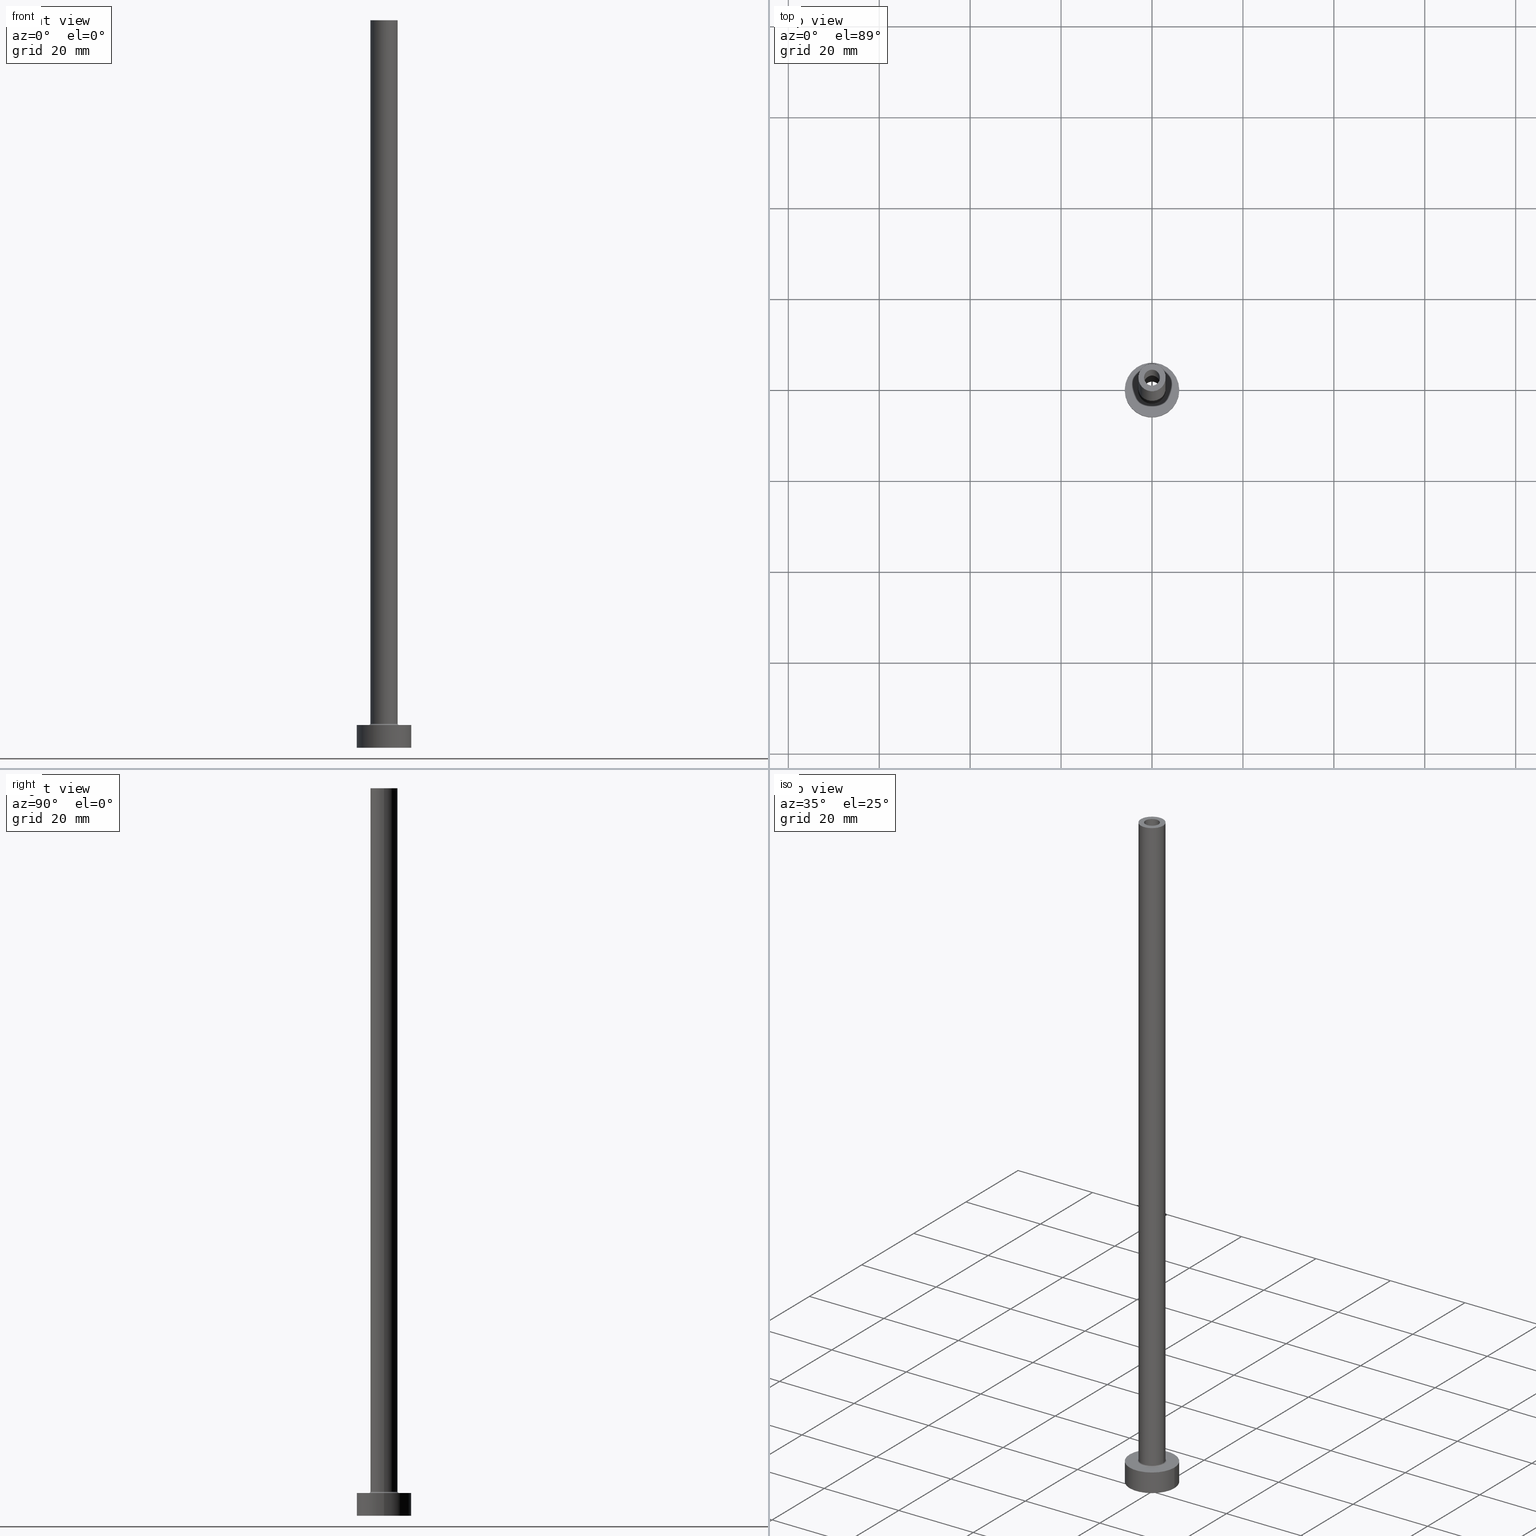
[diagram: canonical four-view strip — front | top / right | iso, engineering-drawing reading convention]
A machine part, canonical four-view strip (front | top / right | iso — engineering-drawing reading convention). The complete STEP part file that produces these views, byte-faithful:
ISO-10303-21;
HEADER;
FILE_DESCRIPTION (( 'STEP AP203' ),
    '1' );
FILE_NAME ('81c4.STEP',
    '2023-02-13T12:00:51',
    ( '' ),
    ( '' ),
    'SwSTEP 2.0',
    'SolidWorks 2019',
    '' );
FILE_SCHEMA (( 'CONFIG_CONTROL_DESIGN' ));
ENDSEC;

DATA;
#1 = DIRECTION ( 'NONE',  ( 0.000000000000000000, 0.000000000000000000, 1.000000000000000000 ) ) ;
#2 = FACE_BOUND ( 'NONE', #270, .T. ) ;
#3 = CARTESIAN_POINT ( 'NONE',  ( 0.000000000000000000, 0.000000000000000000, 120.3740115370177648 ) ) ;
#4 = CARTESIAN_POINT ( 'NONE',  ( 1.899999999999999911, 2.326828918379971365E-16, 115.0000000000000000 ) ) ;
#5 = DIRECTION ( 'NONE',  ( -0.000000000000000000, -0.000000000000000000, -1.000000000000000000 ) ) ;
#6 = CARTESIAN_POINT ( 'NONE',  ( -6.000000000000000888, 0.000000000000000000, 5.000000000000000000 ) ) ;
#7 = AXIS2_PLACEMENT_3D ( 'NONE', #115, #1, #289 ) ;
#8 = CARTESIAN_POINT ( 'NONE',  ( -1.899999999999999911, 0.000000000000000000, 0.000000000000000000 ) ) ;
#9 = CARTESIAN_POINT ( 'NONE',  ( 0.000000000000000000, 0.000000000000000000, 115.0000000000000000 ) ) ;
#10 = ORIENTED_EDGE ( 'NONE', *, *, #313, .F. ) ;
#11 = CIRCLE ( 'NONE', #207, 0.2999999999999999334 ) ;
#12 = ORIENTED_EDGE ( 'NONE', *, *, #373, .F. ) ;
#13 = AXIS2_PLACEMENT_3D ( 'NONE', #180, #320, #215 ) ;
#14 = EDGE_CURVE ( 'NONE', #417, #57, #37, .T. ) ;
#15 = VERTEX_POINT ( 'NONE', #100 ) ;
#16 = ADVANCED_FACE ( 'NONE', ( #67, #63 ), #102, .F. ) ;
#17 = COORDINATED_UNIVERSAL_TIME_OFFSET ( 1, 0, .AHEAD. ) ;
#18 = LINE ( 'NONE', #168, #73 ) ;
#19 = EDGE_LOOP ( 'NONE', ( #229, #237 ) ) ;
#20 = ORIENTED_EDGE ( 'NONE', *, *, #167, .T. ) ;
#21 = FACE_BOUND ( 'NONE', #261, .T. ) ;
#22 = AXIS2_PLACEMENT_3D ( 'NONE', #353, #5, #357 ) ;
#23 = ORIENTED_EDGE ( 'NONE', *, *, #76, .F. ) ;
#24 = DIRECTION ( 'NONE',  ( 1.000000000000000000, 0.000000000000000000, -0.000000000000000000 ) ) ;
#25 = EDGE_LOOP ( 'NONE', ( #85, #120, #432, #141 ) ) ;
#26 = CYLINDRICAL_SURFACE ( 'NONE', #225, 6.000000000000000888 ) ;
#27 = AXIS2_PLACEMENT_3D ( 'NONE', #97, #339, #304 ) ;
#28 = CC_DESIGN_APPROVAL ( #251, ( #241 ) ) ;
#29 = EDGE_CURVE ( 'NONE', #384, #45, #126, .T. ) ;
#30 = CALENDAR_DATE ( 2023, 13, 2 ) ;
#31 = DIRECTION ( 'NONE',  ( 0.000000000000000000, 0.000000000000000000, -1.000000000000000000 ) ) ;
#32 = DIRECTION ( 'NONE',  ( -1.000000000000000000, 0.000000000000000000, 0.000000000000000000 ) ) ;
#33 = LOCAL_TIME ( 13, 0, 51.00000000000000000, #263 ) ;
#34 = DIRECTION ( 'NONE',  ( 0.000000000000000000, 0.000000000000000000, 1.000000000000000000 ) ) ;
#35 = CARTESIAN_POINT ( 'NONE',  ( 6.000000000000000888, 7.347880794884120722E-16, 5.000000000000000000 ) ) ;
#36 = LINE ( 'NONE', #387, #154 ) ;
#37 = LINE ( 'NONE', #35, #322 ) ;
#38 = DIRECTION ( 'NONE',  ( -0.000000000000000000, -0.000000000000000000, -1.000000000000000000 ) ) ;
#39 = AXIS2_PLACEMENT_3D ( 'NONE', #50, #86, #205 ) ;
#40 = CARTESIAN_POINT ( 'NONE',  ( 0.000000000000000000, 0.000000000000000000, 0.000000000000000000 ) ) ;
#41 = ORIENTED_EDGE ( 'NONE', *, *, #423, .T. ) ;
#42 = DATE_TIME_ROLE ( 'creation_date' ) ;
#43 = DIRECTION ( 'NONE',  ( 0.000000000000000000, 0.000000000000000000, 1.000000000000000000 ) ) ;
#44 = ADVANCED_FACE ( 'NONE', ( #369 ), #198, .T. ) ;
#45 = VERTEX_POINT ( 'NONE', #8 ) ;
#46 = PERSON_AND_ORGANIZATION ( #94, #254 ) ;
#47 = DIRECTION ( 'NONE',  ( -0.000000000000000000, -0.000000000000000000, -1.000000000000000000 ) ) ;
#48 = CIRCLE ( 'NONE', #56, 0.2999999999999999334 ) ;
#49 = EDGE_LOOP ( 'NONE', ( #105, #99 ) ) ;
#50 = CARTESIAN_POINT ( 'NONE',  ( 0.000000000000000000, 0.000000000000000000, 115.0000000000000000 ) ) ;
#51 = APPLICATION_PROTOCOL_DEFINITION ( 'international standard', 'config_control_design', 1994, #172 ) ;
#52 = AXIS2_PLACEMENT_3D ( 'NONE', #295, #43, #361 ) ;
#53 = COORDINATED_UNIVERSAL_TIME_OFFSET ( 1, 0, .AHEAD. ) ;
#54 = ORIENTED_EDGE ( 'NONE', *, *, #174, .F. ) ;
#55 = CARTESIAN_POINT ( 'NONE',  ( -1.750000000000000000, 0.000000000000000000, 160.0000000000000000 ) ) ;
#56 = AXIS2_PLACEMENT_3D ( 'NONE', #190, #110, #430 ) ;
#57 = VERTEX_POINT ( 'NONE', #188 ) ;
#58 = DIRECTION ( 'NONE',  ( 1.000000000000000000, 0.000000000000000000, 0.000000000000000000 ) ) ;
#59 = PERSON_AND_ORGANIZATION ( #94, #254 ) ;
#60 = EDGE_CURVE ( 'NONE', #452, #81, #351, .T. ) ;
#61 = CC_DESIGN_DATE_AND_TIME_ASSIGNMENT ( #259, #42, ( #294 ) ) ;
#62 = APPROVAL_ROLE ( '' ) ;
#63 = FACE_OUTER_BOUND ( 'NONE', #303, .T. ) ;
#64 = LOCAL_TIME ( 13, 0, 51.00000000000000000, #53 ) ;
#65 = CARTESIAN_POINT ( 'NONE',  ( -6.000000000000000888, 0.000000000000000000, 5.000000000000000000 ) ) ;
#66 = DIRECTION ( 'NONE',  ( 0.000000000000000000, 0.000000000000000000, -1.000000000000000000 ) ) ;
#67 = FACE_BOUND ( 'NONE', #19, .T. ) ;
#68 = CARTESIAN_POINT ( 'NONE',  ( 0.000000000000000000, 0.000000000000000000, 0.000000000000000000 ) ) ;
#69 = DATE_TIME_ROLE ( 'classification_date' ) ;
#70 = PLANE ( 'NONE',  #177 ) ;
#71 = CARTESIAN_POINT ( 'NONE',  ( 0.000000000000000000, 0.000000000000000000, 5.000000000000000000 ) ) ;
#72 = CARTESIAN_POINT ( 'NONE',  ( 1.899999999999999911, 2.326828918379971365E-16, 0.000000000000000000 ) ) ;
#73 = VECTOR ( 'NONE', #164, 1000.000000000000000 ) ;
#74 = DIRECTION ( 'NONE',  ( 0.000000000000000000, 0.000000000000000000, 1.000000000000000000 ) ) ;
#75 = EDGE_CURVE ( 'NONE', #272, #406, #309, .T. ) ;
#76 = EDGE_CURVE ( 'NONE', #406, #272, #281, .T. ) ;
#77 = DIRECTION ( 'NONE',  ( -0.000000000000000000, -0.000000000000000000, -1.000000000000000000 ) ) ;
#78 = ORIENTED_EDGE ( 'NONE', *, *, #116, .T. ) ;
#79 = AXIS2_PLACEMENT_3D ( 'NONE', #173, #77, #355 ) ;
#80 = CALENDAR_DATE ( 2023, 13, 2 ) ;
#81 = VERTEX_POINT ( 'NONE', #195 ) ;
#82 = ADVANCED_FACE ( 'NONE', ( #379 ), #414, .F. ) ;
#83 = EDGE_LOOP ( 'NONE', ( #266, #363, #316, #279 ) ) ;
#84 = PERSON_AND_ORGANIZATION ( #94, #254 ) ;
#85 = ORIENTED_EDGE ( 'NONE', *, *, #374, .F. ) ;
#86 = DIRECTION ( 'NONE',  ( 0.000000000000000000, 0.000000000000000000, 1.000000000000000000 ) ) ;
#87 = ORIENTED_EDGE ( 'NONE', *, *, #29, .T. ) ;
#88 = DIRECTION ( 'NONE',  ( -0.000000000000000000, -0.000000000000000000, -1.000000000000000000 ) ) ;
#89 = APPROVAL_STATUS ( 'not_yet_approved' ) ;
#90 = CARTESIAN_POINT ( 'NONE',  ( 0.000000000000000000, 0.000000000000000000, 160.0000000000000000 ) ) ;
#91 = PERSON_AND_ORGANIZATION ( #94, #254 ) ;
#92 = ORIENTED_EDGE ( 'NONE', *, *, #14, .T. ) ;
#93 = CARTESIAN_POINT ( 'NONE',  ( 3.300000000000000266, 0.000000000000000000, 4.999999999999999112 ) ) ;
#94 = PERSON ( 'NEUR�EN�', 'NEUR�EN�', 'NEUR�EN�', ('NEUR�EN�'), ('NEUR�EN�'), ('NEUR�EN�') ) ;
#95 = AXIS2_PLACEMENT_3D ( 'NONE', #142, #74, #249 ) ;
#96 = EDGE_CURVE ( 'NONE', #297, #243, #211, .T. ) ;
#97 = CARTESIAN_POINT ( 'NONE',  ( 0.000000000000000000, 0.000000000000000000, 5.299999999999998934 ) ) ;
#98 = EDGE_CURVE ( 'NONE', #272, #297, #138, .T. ) ;
#99 = ORIENTED_EDGE ( 'NONE', *, *, #346, .T. ) ;
#100 = CARTESIAN_POINT ( 'NONE',  ( 3.000000000000000444, 3.673940397442060361E-16, 160.0000000000000000 ) ) ;
#101 = CARTESIAN_POINT ( 'NONE',  ( -3.000000000000000444, 0.000000000000000000, 160.0000000000000000 ) ) ;
#102 = PLANE ( 'NONE',  #109 ) ;
#103 = CIRCLE ( 'NONE', #95, 3.000000000000000444 ) ;
#104 = LINE ( 'NONE', #419, #161 ) ;
#105 = ORIENTED_EDGE ( 'NONE', *, *, #358, .T. ) ;
#106 = DIRECTION ( 'NONE',  ( 1.000000000000000000, 0.000000000000000000, 0.000000000000000000 ) ) ;
#107 = CARTESIAN_POINT ( 'NONE',  ( 0.000000000000000000, 0.000000000000000000, 115.0000000000000000 ) ) ;
#108 = EDGE_LOOP ( 'NONE', ( #458, #92, #227, #199 ) ) ;
#109 = AXIS2_PLACEMENT_3D ( 'NONE', #40, #119, #428 ) ;
#110 = DIRECTION ( 'NONE',  ( 1.224646799147353207E-16, 1.000000000000000000, -0.000000000000000000 ) ) ;
#111 = DIRECTION ( 'NONE',  ( 0.000000000000000000, 0.000000000000000000, 1.000000000000000000 ) ) ;
#112 = AXIS2_PLACEMENT_3D ( 'NONE', #411, #446, #58 ) ;
#113 = CARTESIAN_POINT ( 'NONE',  ( 1.750000000000000000, 2.143131898507867804E-16, 115.0000000000000000 ) ) ;
#114 = CC_DESIGN_APPROVAL ( #214, ( #294 ) ) ;
#115 = CARTESIAN_POINT ( 'NONE',  ( 0.000000000000000000, 0.000000000000000000, 5.000000000000000000 ) ) ;
#116 = EDGE_CURVE ( 'NONE', #452, #208, #11, .T. ) ;
#117 = DIRECTION ( 'NONE',  ( 0.000000000000000000, 0.000000000000000000, 1.000000000000000000 ) ) ;
#118 = PERSON_AND_ORGANIZATION ( #94, #254 ) ;
#119 = DIRECTION ( 'NONE',  ( 0.000000000000000000, 0.000000000000000000, 1.000000000000000000 ) ) ;
#120 = ORIENTED_EDGE ( 'NONE', *, *, #324, .T. ) ;
#121 =( GEOMETRIC_REPRESENTATION_CONTEXT ( 3 ) GLOBAL_UNCERTAINTY_ASSIGNED_CONTEXT ( ( #396 ) ) GLOBAL_UNIT_ASSIGNED_CONTEXT ( ( #150, #181, #250 ) ) REPRESENTATION_CONTEXT ( 'NONE', 'WORKASPACE' ) );
#122 = CIRCLE ( 'NONE', #377, 3.000000000000000444 ) ;
#123 = APPROVAL_DATE_TIME ( #296, #214 ) ;
#124 = ORIENTED_EDGE ( 'NONE', *, *, #166, .T. ) ;
#125 = EDGE_LOOP ( 'NONE', ( #159, #163, #78, #429 ) ) ;
#126 = CIRCLE ( 'NONE', #366, 1.899999999999999911 ) ;
#127 = FACE_BOUND ( 'NONE', #147, .T. ) ;
#128 = ORIENTED_EDGE ( 'NONE', *, *, #409, .T. ) ;
#129 = CIRCLE ( 'NONE', #362, 3.300000000000000266 ) ;
#130 = EDGE_CURVE ( 'NONE', #208, #434, #129, .T. ) ;
#131 = DIRECTION ( 'NONE',  ( 1.000000000000000000, 0.000000000000000000, 0.000000000000000000 ) ) ;
#132 = LOCAL_TIME ( 13, 0, 51.00000000000000000, #311 ) ;
#133 = PERSON_AND_ORGANIZATION_ROLE ( 'design_owner' ) ;
#134 = ORIENTED_EDGE ( 'NONE', *, *, #185, .T. ) ;
#135 = DIRECTION ( 'NONE',  ( 1.000000000000000000, 0.000000000000000000, 0.000000000000000000 ) ) ;
#136 = DIRECTION ( 'NONE',  ( 0.000000000000000000, 0.000000000000000000, 1.000000000000000000 ) ) ;
#137 = ORIENTED_EDGE ( 'NONE', *, *, #313, .T. ) ;
#138 = LINE ( 'NONE', #55, #400 ) ;
#139 = CLOSED_SHELL ( 'NONE', ( #325, #359, #82, #140, #44, #204, #151, #16, #231, #213, #345, #454, #424, #453 ) ) ;
#140 = ADVANCED_FACE ( 'NONE', ( #277 ), #247, .T. ) ;
#141 = ORIENTED_EDGE ( 'NONE', *, *, #116, .F. ) ;
#142 = CARTESIAN_POINT ( 'NONE',  ( 0.000000000000000000, 0.000000000000000000, 5.299999999999998934 ) ) ;
#143 = ORIENTED_EDGE ( 'NONE', *, *, #75, .F. ) ;
#144 = LINE ( 'NONE', #460, #318 ) ;
#145 = CIRCLE ( 'NONE', #403, 1.899999999999999911 ) ;
#146 = DIRECTION ( 'NONE',  ( 1.000000000000000000, 0.000000000000000000, -0.000000000000000000 ) ) ;
#147 = EDGE_LOOP ( 'NONE', ( #371, #258 ) ) ;
#148 = DIRECTION ( 'NONE',  ( -0.000000000000000000, -0.000000000000000000, -1.000000000000000000 ) ) ;
#149 = EDGE_LOOP ( 'NONE', ( #336, #439, #380, #301 ) ) ;
#150 =( LENGTH_UNIT ( ) NAMED_UNIT ( * ) SI_UNIT ( .MILLI., .METRE. ) );
#151 = ADVANCED_FACE ( 'NONE', ( #127, #265 ), #412, .T. ) ;
#152 = DIRECTION ( 'NONE',  ( 1.000000000000000000, 0.000000000000000000, 0.000000000000000000 ) ) ;
#153 = DIRECTION ( 'NONE',  ( -0.000000000000000000, -0.000000000000000000, -1.000000000000000000 ) ) ;
#154 = VECTOR ( 'NONE', #317, 1000.000000000000000 ) ;
#155 = CARTESIAN_POINT ( 'NONE',  ( 0.000000000000000000, 0.000000000000000000, 5.000000000000000000 ) ) ;
#156 = DIRECTION ( 'NONE',  ( -1.000000000000000000, 0.000000000000000000, 0.000000000000000000 ) ) ;
#157 = ORIENTED_EDGE ( 'NONE', *, *, #395, .T. ) ;
#158 = DIRECTION ( 'NONE',  ( 0.000000000000000000, 0.000000000000000000, 1.000000000000000000 ) ) ;
#159 = ORIENTED_EDGE ( 'NONE', *, *, #324, .F. ) ;
#160 = CYLINDRICAL_SURFACE ( 'NONE', #13, 1.750000000000000000 ) ;
#161 = VECTOR ( 'NONE', #66, 1000.000000000000000 ) ;
#162 = PERSON_AND_ORGANIZATION_ROLE ( 'creator' ) ;
#163 = ORIENTED_EDGE ( 'NONE', *, *, #60, .F. ) ;
#164 = DIRECTION ( 'NONE',  ( 0.000000000000000000, 0.000000000000000000, -1.000000000000000000 ) ) ;
#165 = EDGE_LOOP ( 'NONE', ( #210, #233, #87, #389 ) ) ;
#166 = EDGE_CURVE ( 'NONE', #299, #222, #441, .T. ) ;
#167 = EDGE_CURVE ( 'NONE', #222, #45, #18, .T. ) ;
#168 = CARTESIAN_POINT ( 'NONE',  ( -1.899999999999999911, 0.000000000000000000, 120.3740115370177648 ) ) ;
#169 = ORIENTED_EDGE ( 'NONE', *, *, #14, .F. ) ;
#170 = AXIS2_PLACEMENT_3D ( 'NONE', #440, #372, #131 ) ;
#171 = CARTESIAN_POINT ( 'NONE',  ( 0.000000000000000000, 0.000000000000000000, 160.0000000000000000 ) ) ;
#172 = APPLICATION_CONTEXT ( 'configuration controlled 3d designs of mechanical parts and assemblies' ) ;
#173 = CARTESIAN_POINT ( 'NONE',  ( 0.000000000000000000, 0.000000000000000000, 160.0000000000000000 ) ) ;
#174 = EDGE_CURVE ( 'NONE', #15, #367, #381, .T. ) ;
#175 = CARTESIAN_POINT ( 'NONE',  ( -1.899999999999999911, 0.000000000000000000, 115.0000000000000000 ) ) ;
#176 = APPROVAL_STATUS ( 'not_yet_approved' ) ;
#177 = AXIS2_PLACEMENT_3D ( 'NONE', #107, #216, #146 ) ;
#178 = CARTESIAN_POINT ( 'NONE',  ( 0.000000000000000000, 0.000000000000000000, 5.299999999999998934 ) ) ;
#179 = ADVANCED_BREP_SHAPE_REPRESENTATION ( '81c4', ( #267, #393 ), #121 ) ;
#180 = CARTESIAN_POINT ( 'NONE',  ( 0.000000000000000000, 0.000000000000000000, 160.0000000000000000 ) ) ;
#181 =( NAMED_UNIT ( * ) PLANE_ANGLE_UNIT ( ) SI_UNIT ( $, .RADIAN. ) );
#182 = LOCAL_TIME ( 13, 0, 51.00000000000000000, #17 ) ;
#183 = DIRECTION ( 'NONE',  ( 1.000000000000000000, 0.000000000000000000, 0.000000000000000000 ) ) ;
#184 = CARTESIAN_POINT ( 'NONE',  ( 6.000000000000000888, 7.347880794884120722E-16, 5.000000000000000000 ) ) ;
#185 = EDGE_CURVE ( 'NONE', #45, #384, #341, .T. ) ;
#186 = CARTESIAN_POINT ( 'NONE',  ( -1.750000000000000000, 0.000000000000000000, 115.0000000000000000 ) ) ;
#187 = CARTESIAN_POINT ( 'NONE',  ( 0.000000000000000000, 0.000000000000000000, 0.000000000000000000 ) ) ;
#188 = CARTESIAN_POINT ( 'NONE',  ( 6.000000000000000888, 7.347880794884120722E-16, 0.000000000000000000 ) ) ;
#189 = ORIENTED_EDGE ( 'NONE', *, *, #262, .T. ) ;
#190 = CARTESIAN_POINT ( 'NONE',  ( -3.300000000000000266, 4.041334437186266003E-16, 5.299999999999998934 ) ) ;
#191 = DIRECTION ( 'NONE',  ( 0.000000000000000000, 0.000000000000000000, 1.000000000000000000 ) ) ;
#192 = ORIENTED_EDGE ( 'NONE', *, *, #174, .T. ) ;
#193 = AXIS2_PLACEMENT_3D ( 'NONE', #3, #390, #354 ) ;
#194 = APPROVAL_ROLE ( '' ) ;
#195 = CARTESIAN_POINT ( 'NONE',  ( -3.000000000000000444, 0.000000000000000000, 5.299999999999998934 ) ) ;
#196 = EDGE_LOOP ( 'NONE', ( #12, #124, #20, #134 ) ) ;
#197 = EDGE_LOOP ( 'NONE', ( #206, #418 ) ) ;
#198 = CYLINDRICAL_SURFACE ( 'NONE', #407, 6.000000000000000888 ) ;
#199 = ORIENTED_EDGE ( 'NONE', *, *, #262, .F. ) ;
#200 = AXIS2_PLACEMENT_3D ( 'NONE', #235, #202, #408 ) ;
#201 = TOROIDAL_SURFACE ( 'NONE', #286, 3.300000000000000266, 0.2999999999999999889 ) ;
#202 = DIRECTION ( 'NONE',  ( 0.000000000000000000, 0.000000000000000000, 1.000000000000000000 ) ) ;
#203 = PRODUCT_DEFINITION_SHAPE ( 'NONE', 'NONE',  #294 ) ;
#204 = ADVANCED_FACE ( 'NONE', ( #344 ), #26, .T. ) ;
#205 = DIRECTION ( 'NONE',  ( 1.000000000000000000, 0.000000000000000000, 0.000000000000000000 ) ) ;
#206 = ORIENTED_EDGE ( 'NONE', *, *, #293, .F. ) ;
#207 = AXIS2_PLACEMENT_3D ( 'NONE', #307, #308, #438 ) ;
#208 = VERTEX_POINT ( 'NONE', #93 ) ;
#209 = CARTESIAN_POINT ( 'NONE',  ( 0.000000000000000000, 0.000000000000000000, 5.000000000000000000 ) ) ;
#210 = ORIENTED_EDGE ( 'NONE', *, *, #293, .T. ) ;
#211 = CIRCLE ( 'NONE', #39, 1.750000000000000000 ) ;
#212 = APPROVAL_PERSON_ORGANIZATION ( #59, #273, #62 ) ;
#213 = ADVANCED_FACE ( 'NONE', ( #21, #242 ), #415, .T. ) ;
#214 = APPROVAL ( #89, 'NEUR�EN�' ) ;
#215 = DIRECTION ( 'NONE',  ( -1.000000000000000000, 0.000000000000000000, 0.000000000000000000 ) ) ;
#216 = DIRECTION ( 'NONE',  ( 0.000000000000000000, 0.000000000000000000, 1.000000000000000000 ) ) ;
#217 = CYLINDRICAL_SURFACE ( 'NONE', #193, 1.899999999999999911 ) ;
#218 = CARTESIAN_POINT ( 'NONE',  ( -3.000000000000000444, 0.000000000000000000, 160.0000000000000000 ) ) ;
#219 = DIRECTION ( 'NONE',  ( 0.000000000000000000, 0.000000000000000000, 1.000000000000000000 ) ) ;
#220 = CIRCLE ( 'NONE', #356, 6.000000000000000888 ) ;
#221 = CARTESIAN_POINT ( 'NONE',  ( 1.750000000000000000, 2.143131898507867804E-16, 160.0000000000000000 ) ) ;
#222 = VERTEX_POINT ( 'NONE', #175 ) ;
#223 = DESIGN_CONTEXT ( 'detailed design', #172, 'design' ) ;
#224 = CARTESIAN_POINT ( 'NONE',  ( -1.750000000000000000, 0.000000000000000000, 160.0000000000000000 ) ) ;
#225 = AXIS2_PLACEMENT_3D ( 'NONE', #209, #88, #375 ) ;
#226 = EDGE_LOOP ( 'NONE', ( #54, #128, #401, #306 ) ) ;
#227 = ORIENTED_EDGE ( 'NONE', *, *, #436, .T. ) ;
#228 = DIRECTION ( 'NONE',  ( 1.000000000000000000, 0.000000000000000000, 0.000000000000000000 ) ) ;
#229 = ORIENTED_EDGE ( 'NONE', *, *, #185, .F. ) ;
#230 = PERSON_AND_ORGANIZATION_ROLE ( 'design_supplier' ) ;
#231 = ADVANCED_FACE ( 'NONE', ( #310 ), #449, .T. ) ;
#232 = CC_DESIGN_PERSON_AND_ORGANIZATION_ASSIGNMENT ( #91, #133, ( #333 ) ) ;
#233 = ORIENTED_EDGE ( 'NONE', *, *, #373, .T. ) ;
#234 = SECURITY_CLASSIFICATION ( '', '', #368 ) ;
#235 = CARTESIAN_POINT ( 'NONE',  ( 0.000000000000000000, 0.000000000000000000, 5.000000000000000000 ) ) ;
#236 = CC_DESIGN_PERSON_AND_ORGANIZATION_ASSIGNMENT ( #46, #334, ( #234 ) ) ;
#237 = ORIENTED_EDGE ( 'NONE', *, *, #29, .F. ) ;
#238 = DIRECTION ( 'NONE',  ( 0.000000000000000000, 0.000000000000000000, 1.000000000000000000 ) ) ;
#239 = APPROVAL_ROLE ( '' ) ;
#240 = DIRECTION ( 'NONE',  ( 0.000000000000000000, 0.000000000000000000, -1.000000000000000000 ) ) ;
#241 = PRODUCT_DEFINITION_FORMATION_WITH_SPECIFIED_SOURCE ( 'LIBOVOLN�', '', #333, .NOT_KNOWN. ) ;
#242 = FACE_OUTER_BOUND ( 'NONE', #410, .T. ) ;
#243 = VERTEX_POINT ( 'NONE', #113 ) ;
#244 = CALENDAR_DATE ( 2023, 13, 2 ) ;
#245 = DIRECTION ( 'NONE',  ( 0.000000000000000000, 0.000000000000000000, -1.000000000000000000 ) ) ;
#246 = CC_DESIGN_APPROVAL ( #273, ( #234 ) ) ;
#247 = CYLINDRICAL_SURFACE ( 'NONE', #391, 3.000000000000000444 ) ;
#248 = DATE_AND_TIME ( #30, #292 ) ;
#249 = DIRECTION ( 'NONE',  ( 1.000000000000000000, 0.000000000000000000, 0.000000000000000000 ) ) ;
#250 =( NAMED_UNIT ( * ) SI_UNIT ( $, .STERADIAN. ) SOLID_ANGLE_UNIT ( ) );
#251 = APPROVAL ( #437, 'NEUR�EN�' ) ;
#252 = DIRECTION ( 'NONE',  ( 1.000000000000000000, 0.000000000000000000, 0.000000000000000000 ) ) ;
#253 = CARTESIAN_POINT ( 'NONE',  ( 3.000000000000000444, 3.673940397442060361E-16, 5.299999999999998934 ) ) ;
#254 = ORGANIZATION ( 'NEUR�EN�', 'NEUR�EN�', '' ) ;
#255 = LINE ( 'NONE', #6, #284 ) ;
#256 = DIRECTION ( 'NONE',  ( -1.000000000000000000, 0.000000000000000000, 0.000000000000000000 ) ) ;
#257 = DIRECTION ( 'NONE',  ( -0.000000000000000000, -0.000000000000000000, -1.000000000000000000 ) ) ;
#258 = ORIENTED_EDGE ( 'NONE', *, *, #392, .T. ) ;
#259 = DATE_AND_TIME ( #80, #182 ) ;
#260 = DIRECTION ( 'NONE',  ( 0.000000000000000000, 0.000000000000000000, 1.000000000000000000 ) ) ;
#261 = EDGE_LOOP ( 'NONE', ( #143, #23 ) ) ;
#262 = EDGE_CURVE ( 'NONE', #328, #312, #255, .T. ) ;
#263 = COORDINATED_UNIVERSAL_TIME_OFFSET ( 1, 0, .AHEAD. ) ;
#264 = APPROVAL_DATE_TIME ( #402, #251 ) ;
#265 = FACE_OUTER_BOUND ( 'NONE', #49, .T. ) ;
#266 = ORIENTED_EDGE ( 'NONE', *, *, #75, .T. ) ;
#267 = MANIFOLD_SOLID_BREP ( 'Odebrat vysunut�m4', #139 ) ;
#268 = CARTESIAN_POINT ( 'NONE',  ( 0.000000000000000000, 0.000000000000000000, 5.000000000000000000 ) ) ;
#269 = PERSON_AND_ORGANIZATION ( #94, #254 ) ;
#270 = EDGE_LOOP ( 'NONE', ( #447, #157 ) ) ;
#271 = DIRECTION ( 'NONE',  ( 1.000000000000000000, 0.000000000000000000, 0.000000000000000000 ) ) ;
#272 = VERTEX_POINT ( 'NONE', #224 ) ;
#273 = APPROVAL ( #176, 'NEUR�EN�' ) ;
#274 = DIRECTION ( 'NONE',  ( -1.000000000000000000, 0.000000000000000000, 0.000000000000000000 ) ) ;
#275 = ORIENTED_EDGE ( 'NONE', *, *, #358, .F. ) ;
#276 = CIRCLE ( 'NONE', #22, 3.300000000000000266 ) ;
#277 = FACE_OUTER_BOUND ( 'NONE', #226, .T. ) ;
#278 = DATE_AND_TIME ( #244, #132 ) ;
#279 = ORIENTED_EDGE ( 'NONE', *, *, #98, .F. ) ;
#280 = ORIENTED_EDGE ( 'NONE', *, *, #436, .F. ) ;
#281 = CIRCLE ( 'NONE', #52, 1.750000000000000000 ) ;
#282 = AXIS2_PLACEMENT_3D ( 'NONE', #435, #260, #323 ) ;
#283 = DIRECTION ( 'NONE',  ( -0.000000000000000000, -0.000000000000000000, -1.000000000000000000 ) ) ;
#284 = VECTOR ( 'NONE', #38, 1000.000000000000000 ) ;
#285 = DIRECTION ( 'NONE',  ( 0.000000000000000000, 0.000000000000000000, -1.000000000000000000 ) ) ;
#286 = AXIS2_PLACEMENT_3D ( 'NONE', #178, #421, #106 ) ;
#287 = FACE_OUTER_BOUND ( 'NONE', #125, .T. ) ;
#288 = CARTESIAN_POINT ( 'NONE',  ( 0.000000000000000000, 0.000000000000000000, 160.0000000000000000 ) ) ;
#289 = DIRECTION ( 'NONE',  ( 1.000000000000000000, 0.000000000000000000, 0.000000000000000000 ) ) ;
#290 = CARTESIAN_POINT ( 'NONE',  ( -6.000000000000000888, 0.000000000000000000, 0.000000000000000000 ) ) ;
#291 = CARTESIAN_POINT ( 'NONE',  ( 0.000000000000000000, 0.000000000000000000, 160.0000000000000000 ) ) ;
#292 = LOCAL_TIME ( 13, 0, 51.00000000000000000, #457 ) ;
#293 = EDGE_CURVE ( 'NONE', #222, #299, #145, .T. ) ;
#294 = PRODUCT_DEFINITION ( 'NEZN�M�', '', #241, #223 ) ;
#295 = CARTESIAN_POINT ( 'NONE',  ( 0.000000000000000000, 0.000000000000000000, 160.0000000000000000 ) ) ;
#296 = DATE_AND_TIME ( #413, #64 ) ;
#297 = VERTEX_POINT ( 'NONE', #186 ) ;
#298 = DIRECTION ( 'NONE',  ( 0.000000000000000000, 0.000000000000000000, 1.000000000000000000 ) ) ;
#299 = VERTEX_POINT ( 'NONE', #4 ) ;
#300 = CIRCLE ( 'NONE', #342, 6.000000000000000888 ) ;
#301 = ORIENTED_EDGE ( 'NONE', *, *, #395, .F. ) ;
#302 = PERSON_AND_ORGANIZATION_ROLE ( 'creator' ) ;
#303 = EDGE_LOOP ( 'NONE', ( #450, #280 ) ) ;
#304 = DIRECTION ( 'NONE',  ( 1.000000000000000000, 0.000000000000000000, 0.000000000000000000 ) ) ;
#305 = APPLICATION_PROTOCOL_DEFINITION ( 'international standard', 'config_control_design', 1994, #385 ) ;
#306 = ORIENTED_EDGE ( 'NONE', *, *, #423, .F. ) ;
#307 = CARTESIAN_POINT ( 'NONE',  ( 3.300000000000000266, 0.000000000000000000, 5.299999999999998934 ) ) ;
#308 = DIRECTION ( 'NONE',  ( 0.000000000000000000, -1.000000000000000000, 0.000000000000000000 ) ) ;
#309 = CIRCLE ( 'NONE', #388, 1.750000000000000000 ) ;
#310 = FACE_OUTER_BOUND ( 'NONE', #376, .T. ) ;
#311 = COORDINATED_UNIVERSAL_TIME_OFFSET ( 1, 0, .AHEAD. ) ;
#312 = VERTEX_POINT ( 'NONE', #290 ) ;
#313 = EDGE_CURVE ( 'NONE', #367, #15, #122, .T. ) ;
#314 = EDGE_CURVE ( 'NONE', #312, #57, #220, .T. ) ;
#315 = APPROVAL_PERSON_ORGANIZATION ( #269, #214, #239 ) ;
#316 = ORIENTED_EDGE ( 'NONE', *, *, #96, .F. ) ;
#317 = DIRECTION ( 'NONE',  ( -0.000000000000000000, -0.000000000000000000, -1.000000000000000000 ) ) ;
#318 = VECTOR ( 'NONE', #285, 1000.000000000000000 ) ;
#319 = FACE_OUTER_BOUND ( 'NONE', #196, .T. ) ;
#320 = DIRECTION ( 'NONE',  ( 0.000000000000000000, 0.000000000000000000, -1.000000000000000000 ) ) ;
#321 = CARTESIAN_POINT ( 'NONE',  ( 0.000000000000000000, 0.000000000000000000, 115.0000000000000000 ) ) ;
#322 = VECTOR ( 'NONE', #283, 1000.000000000000000 ) ;
#323 = DIRECTION ( 'NONE',  ( 1.000000000000000000, 0.000000000000000000, 0.000000000000000000 ) ) ;
#324 = EDGE_CURVE ( 'NONE', #81, #434, #48, .T. ) ;
#325 = ADVANCED_FACE ( 'NONE', ( #386 ), #160, .F. ) ;
#326 = DIRECTION ( 'NONE',  ( 1.000000000000000000, 0.000000000000000000, 0.000000000000000000 ) ) ;
#327 = APPROVAL_PERSON_ORGANIZATION ( #118, #251, #194 ) ;
#328 = VERTEX_POINT ( 'NONE', #65 ) ;
#329 = CC_DESIGN_PERSON_AND_ORGANIZATION_ASSIGNMENT ( #360, #162, ( #294 ) ) ;
#330 = CARTESIAN_POINT ( 'NONE',  ( 0.000000000000000000, 0.000000000000000000, 0.000000000000000000 ) ) ;
#331 = ORIENTED_EDGE ( 'NONE', *, *, #409, .F. ) ;
#332 = CIRCLE ( 'NONE', #7, 6.000000000000000888 ) ;
#333 = PRODUCT ( '81c4', '81c4', '', ( #340 ) ) ;
#334 = PERSON_AND_ORGANIZATION_ROLE ( 'classification_officer' ) ;
#335 = DIRECTION ( 'NONE',  ( 1.000000000000000000, 0.000000000000000000, 0.000000000000000000 ) ) ;
#336 = ORIENTED_EDGE ( 'NONE', *, *, #378, .F. ) ;
#337 = CARTESIAN_POINT ( 'NONE',  ( 0.000000000000000000, 0.000000000000000000, 115.0000000000000000 ) ) ;
#338 = EDGE_LOOP ( 'NONE', ( #169, #275, #189, #365 ) ) ;
#339 = DIRECTION ( 'NONE',  ( 0.000000000000000000, 0.000000000000000000, 1.000000000000000000 ) ) ;
#340 = MECHANICAL_CONTEXT ( 'NONE', #385, 'mechanical' ) ;
#341 = CIRCLE ( 'NONE', #170, 1.899999999999999911 ) ;
#342 = AXIS2_PLACEMENT_3D ( 'NONE', #71, #219, #383 ) ;
#343 = DIRECTION ( 'NONE',  ( 0.000000000000000000, 0.000000000000000000, 1.000000000000000000 ) ) ;
#344 = FACE_OUTER_BOUND ( 'NONE', #338, .T. ) ;
#345 = ADVANCED_FACE ( 'NONE', ( #287 ), #201, .F. ) ;
#346 = EDGE_CURVE ( 'NONE', #417, #328, #300, .T. ) ;
#347 = AXIS2_PLACEMENT_3D ( 'NONE', #171, #343, #24 ) ;
#348 = AXIS2_PLACEMENT_3D ( 'NONE', #455, #31, #156 ) ;
#349 = FACE_OUTER_BOUND ( 'NONE', #165, .T. ) ;
#350 = FACE_OUTER_BOUND ( 'NONE', #149, .T. ) ;
#351 = CIRCLE ( 'NONE', #282, 3.000000000000000444 ) ;
#352 = CC_DESIGN_DATE_AND_TIME_ASSIGNMENT ( #248, #69, ( #234 ) ) ;
#353 = CARTESIAN_POINT ( 'NONE',  ( 0.000000000000000000, 0.000000000000000000, 5.000000000000000000 ) ) ;
#354 = DIRECTION ( 'NONE',  ( -1.000000000000000000, 0.000000000000000000, 0.000000000000000000 ) ) ;
#355 = DIRECTION ( 'NONE',  ( -1.000000000000000000, 0.000000000000000000, 0.000000000000000000 ) ) ;
#356 = AXIS2_PLACEMENT_3D ( 'NONE', #68, #298, #183 ) ;
#357 = DIRECTION ( 'NONE',  ( 1.000000000000000000, 0.000000000000000000, 0.000000000000000000 ) ) ;
#358 = EDGE_CURVE ( 'NONE', #328, #417, #332, .T. ) ;
#359 = ADVANCED_FACE ( 'NONE', ( #349 ), #398, .F. ) ;
#360 = PERSON_AND_ORGANIZATION ( #94, #254 ) ;
#361 = DIRECTION ( 'NONE',  ( 1.000000000000000000, 0.000000000000000000, 0.000000000000000000 ) ) ;
#362 = AXIS2_PLACEMENT_3D ( 'NONE', #268, #443, #135 ) ;
#363 = ORIENTED_EDGE ( 'NONE', *, *, #378, .T. ) ;
#364 = PERSON_AND_ORGANIZATION ( #94, #254 ) ;
#365 = ORIENTED_EDGE ( 'NONE', *, *, #314, .T. ) ;
#366 = AXIS2_PLACEMENT_3D ( 'NONE', #330, #257, #228 ) ;
#367 = VERTEX_POINT ( 'NONE', #218 ) ;
#368 = SECURITY_CLASSIFICATION_LEVEL ( 'unclassified' ) ;
#369 = FACE_OUTER_BOUND ( 'NONE', #108, .T. ) ;
#370 = AXIS2_PLACEMENT_3D ( 'NONE', #321, #34, #252 ) ;
#371 = ORIENTED_EDGE ( 'NONE', *, *, #130, .T. ) ;
#372 = DIRECTION ( 'NONE',  ( -0.000000000000000000, -0.000000000000000000, -1.000000000000000000 ) ) ;
#373 = EDGE_CURVE ( 'NONE', #299, #384, #144, .T. ) ;
#374 = EDGE_CURVE ( 'NONE', #81, #452, #103, .T. ) ;
#375 = DIRECTION ( 'NONE',  ( -1.000000000000000000, 0.000000000000000000, 0.000000000000000000 ) ) ;
#376 = EDGE_LOOP ( 'NONE', ( #331, #10, #41, #445 ) ) ;
#377 = AXIS2_PLACEMENT_3D ( 'NONE', #288, #158, #397 ) ;
#378 = EDGE_CURVE ( 'NONE', #406, #243, #104, .T. ) ;
#379 = FACE_OUTER_BOUND ( 'NONE', #25, .T. ) ;
#380 = ORIENTED_EDGE ( 'NONE', *, *, #98, .T. ) ;
#381 = CIRCLE ( 'NONE', #112, 3.000000000000000444 ) ;
#382 = AXIS2_PLACEMENT_3D ( 'NONE', #187, #111, #152 ) ;
#383 = DIRECTION ( 'NONE',  ( 1.000000000000000000, 0.000000000000000000, 0.000000000000000000 ) ) ;
#384 = VERTEX_POINT ( 'NONE', #72 ) ;
#385 = APPLICATION_CONTEXT ( 'configuration controlled 3d designs of mechanical parts and assemblies' ) ;
#386 = FACE_OUTER_BOUND ( 'NONE', #83, .T. ) ;
#387 = CARTESIAN_POINT ( 'NONE',  ( 3.000000000000000444, 3.673940397442060361E-16, 160.0000000000000000 ) ) ;
#388 = AXIS2_PLACEMENT_3D ( 'NONE', #399, #191, #326 ) ;
#389 = ORIENTED_EDGE ( 'NONE', *, *, #167, .F. ) ;
#390 = DIRECTION ( 'NONE',  ( 0.000000000000000000, 0.000000000000000000, -1.000000000000000000 ) ) ;
#391 = AXIS2_PLACEMENT_3D ( 'NONE', #90, #47, #274 ) ;
#392 = EDGE_CURVE ( 'NONE', #434, #208, #276, .T. ) ;
#393 = AXIS2_PLACEMENT_3D ( 'NONE', #444, #136, #271 ) ;
#394 = CYLINDRICAL_SURFACE ( 'NONE', #404, 1.750000000000000000 ) ;
#395 = EDGE_CURVE ( 'NONE', #243, #297, #433, .T. ) ;
#396 = UNCERTAINTY_MEASURE_WITH_UNIT (LENGTH_MEASURE( 1.000000000000000082E-05 ), #150, 'distance_accuracy_value', 'NONE');
#397 = DIRECTION ( 'NONE',  ( 1.000000000000000000, 0.000000000000000000, 0.000000000000000000 ) ) ;
#398 = CYLINDRICAL_SURFACE ( 'NONE', #348, 1.899999999999999911 ) ;
#399 = CARTESIAN_POINT ( 'NONE',  ( 0.000000000000000000, 0.000000000000000000, 160.0000000000000000 ) ) ;
#400 = VECTOR ( 'NONE', #240, 1000.000000000000000 ) ;
#401 = ORIENTED_EDGE ( 'NONE', *, *, #60, .T. ) ;
#402 = DATE_AND_TIME ( #431, #33 ) ;
#403 = AXIS2_PLACEMENT_3D ( 'NONE', #9, #117, #459 ) ;
#404 = AXIS2_PLACEMENT_3D ( 'NONE', #291, #245, #32 ) ;
#405 = CC_DESIGN_PERSON_AND_ORGANIZATION_ASSIGNMENT ( #84, #230, ( #241 ) ) ;
#406 = VERTEX_POINT ( 'NONE', #221 ) ;
#407 = AXIS2_PLACEMENT_3D ( 'NONE', #155, #153, #256 ) ;
#408 = DIRECTION ( 'NONE',  ( 1.000000000000000000, 0.000000000000000000, -0.000000000000000000 ) ) ;
#409 = EDGE_CURVE ( 'NONE', #15, #452, #36, .T. ) ;
#410 = EDGE_LOOP ( 'NONE', ( #137, #192 ) ) ;
#411 = CARTESIAN_POINT ( 'NONE',  ( 0.000000000000000000, 0.000000000000000000, 160.0000000000000000 ) ) ;
#412 = PLANE ( 'NONE',  #200 ) ;
#413 = CALENDAR_DATE ( 2023, 13, 2 ) ;
#414 = TOROIDAL_SURFACE ( 'NONE', #27, 3.300000000000000266, 0.2999999999999999889 ) ;
#415 = PLANE ( 'NONE',  #347 ) ;
#416 = APPROVAL_DATE_TIME ( #278, #273 ) ;
#417 = VERTEX_POINT ( 'NONE', #184 ) ;
#418 = ORIENTED_EDGE ( 'NONE', *, *, #166, .F. ) ;
#419 = CARTESIAN_POINT ( 'NONE',  ( 1.750000000000000000, 2.143131898507867804E-16, 160.0000000000000000 ) ) ;
#420 = AXIS2_PLACEMENT_3D ( 'NONE', #337, #238, #335 ) ;
#421 = DIRECTION ( 'NONE',  ( 0.000000000000000000, 0.000000000000000000, 1.000000000000000000 ) ) ;
#422 = SHAPE_DEFINITION_REPRESENTATION ( #203, #179 ) ;
#423 = EDGE_CURVE ( 'NONE', #367, #81, #427, .T. ) ;
#424 = ADVANCED_FACE ( 'NONE', ( #2, #425 ), #70, .F. ) ;
#425 = FACE_OUTER_BOUND ( 'NONE', #197, .T. ) ;
#426 = CIRCLE ( 'NONE', #382, 6.000000000000000888 ) ;
#427 = LINE ( 'NONE', #101, #451 ) ;
#428 = DIRECTION ( 'NONE',  ( 1.000000000000000000, 0.000000000000000000, -0.000000000000000000 ) ) ;
#429 = ORIENTED_EDGE ( 'NONE', *, *, #392, .F. ) ;
#430 = DIRECTION ( 'NONE',  ( -1.000000000000000000, 1.224646799147353207E-16, 0.000000000000000000 ) ) ;
#431 = CALENDAR_DATE ( 2023, 13, 2 ) ;
#432 = ORIENTED_EDGE ( 'NONE', *, *, #130, .F. ) ;
#433 = CIRCLE ( 'NONE', #370, 1.750000000000000000 ) ;
#434 = VERTEX_POINT ( 'NONE', #456 ) ;
#435 = CARTESIAN_POINT ( 'NONE',  ( 0.000000000000000000, 0.000000000000000000, 5.299999999999998934 ) ) ;
#436 = EDGE_CURVE ( 'NONE', #57, #312, #426, .T. ) ;
#437 = APPROVAL_STATUS ( 'not_yet_approved' ) ;
#438 = DIRECTION ( 'NONE',  ( 0.000000000000000000, 0.000000000000000000, -1.000000000000000000 ) ) ;
#439 = ORIENTED_EDGE ( 'NONE', *, *, #76, .T. ) ;
#440 = CARTESIAN_POINT ( 'NONE',  ( 0.000000000000000000, 0.000000000000000000, 0.000000000000000000 ) ) ;
#441 = CIRCLE ( 'NONE', #420, 1.899999999999999911 ) ;
#442 = CC_DESIGN_SECURITY_CLASSIFICATION ( #234, ( #241 ) ) ;
#443 = DIRECTION ( 'NONE',  ( -0.000000000000000000, -0.000000000000000000, -1.000000000000000000 ) ) ;
#444 = CARTESIAN_POINT ( 'NONE',  ( 0.000000000000000000, 0.000000000000000000, 0.000000000000000000 ) ) ;
#445 = ORIENTED_EDGE ( 'NONE', *, *, #374, .T. ) ;
#446 = DIRECTION ( 'NONE',  ( 0.000000000000000000, 0.000000000000000000, 1.000000000000000000 ) ) ;
#447 = ORIENTED_EDGE ( 'NONE', *, *, #96, .T. ) ;
#448 = PRODUCT_RELATED_PRODUCT_CATEGORY ( 'detail', '', ( #333 ) ) ;
#449 = CYLINDRICAL_SURFACE ( 'NONE', #79, 3.000000000000000444 ) ;
#450 = ORIENTED_EDGE ( 'NONE', *, *, #314, .F. ) ;
#451 = VECTOR ( 'NONE', #148, 1000.000000000000000 ) ;
#452 = VERTEX_POINT ( 'NONE', #253 ) ;
#453 = ADVANCED_FACE ( 'NONE', ( #350 ), #394, .F. ) ;
#454 = ADVANCED_FACE ( 'NONE', ( #319 ), #217, .F. ) ;
#455 = CARTESIAN_POINT ( 'NONE',  ( 0.000000000000000000, 0.000000000000000000, 120.3740115370177648 ) ) ;
#456 = CARTESIAN_POINT ( 'NONE',  ( -3.300000000000000266, 4.041334437186266003E-16, 4.999999999999999112 ) ) ;
#457 = COORDINATED_UNIVERSAL_TIME_OFFSET ( 1, 0, .AHEAD. ) ;
#458 = ORIENTED_EDGE ( 'NONE', *, *, #346, .F. ) ;
#459 = DIRECTION ( 'NONE',  ( 1.000000000000000000, 0.000000000000000000, 0.000000000000000000 ) ) ;
#460 = CARTESIAN_POINT ( 'NONE',  ( 1.899999999999999911, 2.326828918379971365E-16, 120.3740115370177648 ) ) ;
#461 = CC_DESIGN_PERSON_AND_ORGANIZATION_ASSIGNMENT ( #364, #302, ( #241 ) ) ;
ENDSEC;
END-ISO-10303-21;
